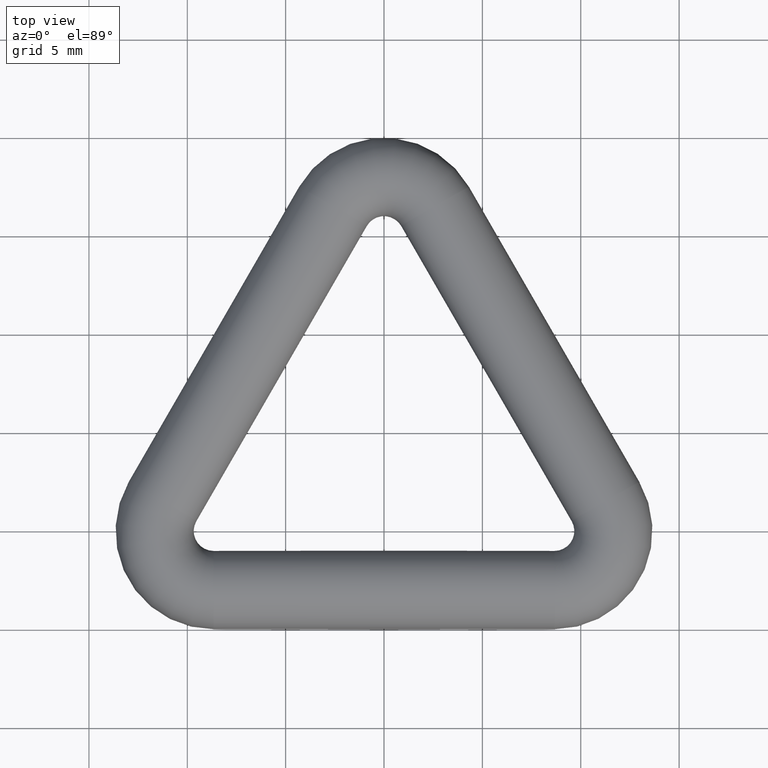
[diagram: clean part render]
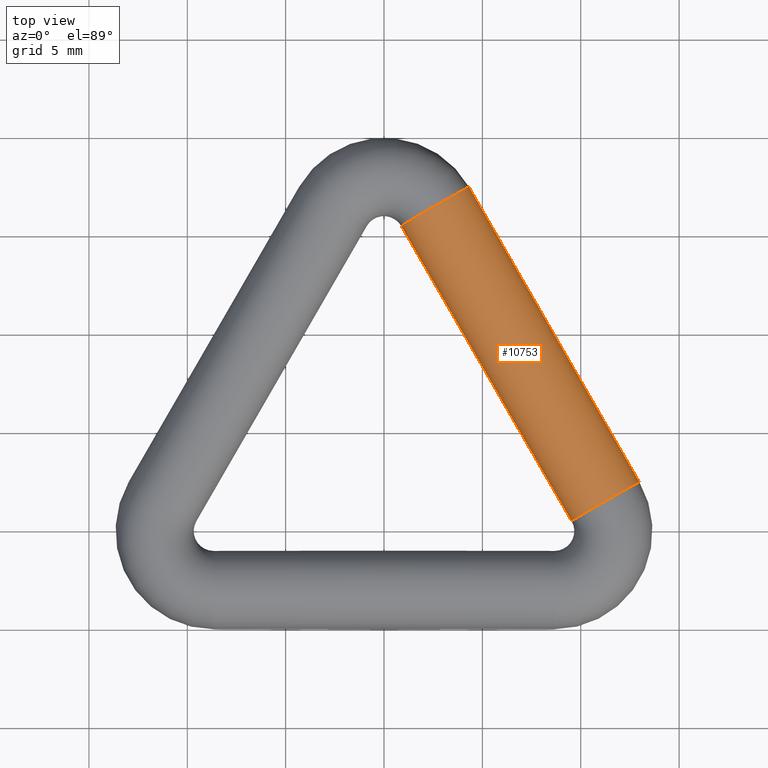
[diagram: same view with one face highlighted and labeled with its STEP entity id]
A machine part, top view. The second image highlights one B-rep face of the part: STEP entity #10753.
In plain terms, the highlighted cylindrical surface (bore or boss wall) has radius 2 mm, axis along (-0.5, 0.866, 0).
Its self-contained STEP definition (entity closure, byte-faithful):
#333 = EDGE_CURVE ( 'NONE', #892, #892, #7743, .T. ) ;
#892 = VERTEX_POINT ( 'NONE', #11177 ) ;
#956 = EDGE_CURVE ( 'NONE', #4850, #4850, #6764, .T. ) ;
#1141 = EDGE_LOOP ( 'NONE', ( #7031 ) ) ;
#2040 = AXIS2_PLACEMENT_3D ( 'NONE', #9312, #9347, #11106 ) ;
#2151 = EDGE_LOOP ( 'NONE', ( #6022 ) ) ;
#2721 = AXIS2_PLACEMENT_3D ( 'NONE', #11075, #5920, #10233 ) ;
#4160 = FACE_OUTER_BOUND ( 'NONE', #1141, .T. ) ;
#4850 = VERTEX_POINT ( 'NONE', #7830 ) ;
#4951 = CARTESIAN_POINT ( 'NONE',  ( 11.25833024919765400, 6.499999999999996400, 0.0000000000000000000 ) ) ;
#5865 = DIRECTION ( 'NONE',  ( -0.4999999999999980000, 0.8660254037844400400, 0.0000000000000000000 ) ) ;
#5920 = DIRECTION ( 'NONE',  ( -0.4999999999999977800, 0.8660254037844399300, 0.0000000000000000000 ) ) ;
#6022 = ORIENTED_EDGE ( 'NONE', *, *, #333, .F. ) ;
#6764 = CIRCLE ( 'NONE', #10438, 1.999999999999999600 ) ;
#7010 = FACE_OUTER_BOUND ( 'NONE', #2151, .T. ) ;
#7031 = ORIENTED_EDGE ( 'NONE', *, *, #956, .T. ) ;
#7743 = CIRCLE ( 'NONE', #2040, 1.999999999999999600 ) ;
#7830 = CARTESIAN_POINT ( 'NONE',  ( 11.25833024919765400, 6.499999999999996400, -1.999999999999999600 ) ) ;
#9312 = CARTESIAN_POINT ( 'NONE',  ( 2.598076211353319600, 21.49999999999999600, 0.0000000000000000000 ) ) ;
#9347 = DIRECTION ( 'NONE',  ( -0.4999999999999980000, 0.8660254037844400400, 0.0000000000000000000 ) ) ;
#10233 = DIRECTION ( 'NONE',  ( -0.8660254037844400400, -0.4999999999999977200, 0.0000000000000000000 ) ) ;
#10438 = AXIS2_PLACEMENT_3D ( 'NONE', #4951, #5865, #11058 ) ;
#10753 = ADVANCED_FACE ( 'NONE', ( #4160, #7010 ), #11123, .T. ) ;
#11058 = DIRECTION ( 'NONE',  ( 0.0000000000000000000, 0.0000000000000000000, -1.000000000000000000 ) ) ;
#11075 = CARTESIAN_POINT ( 'NONE',  ( 11.25833024919765400, 6.499999999999996400, 0.0000000000000000000 ) ) ;
#11106 = DIRECTION ( 'NONE',  ( 0.0000000000000000000, 0.0000000000000000000, -1.000000000000000000 ) ) ;
#11123 = CYLINDRICAL_SURFACE ( 'NONE', #2721, 2.000000000000000400 ) ;
#11177 = CARTESIAN_POINT ( 'NONE',  ( 2.598076211353319600, 21.49999999999999600, -1.999999999999999600 ) ) ;